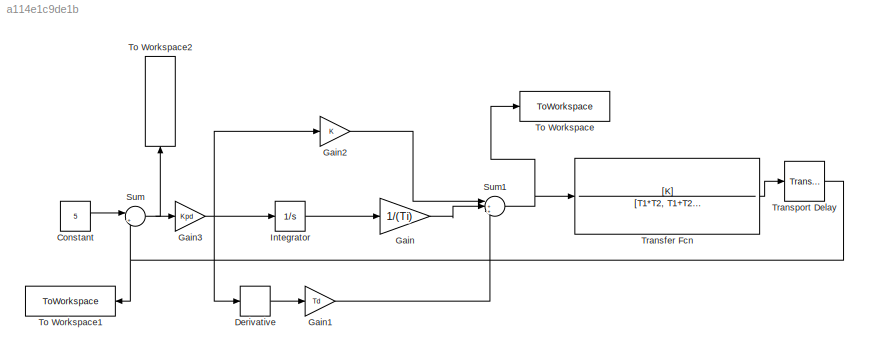
MODEL slx_a114e1c9de1b
KIND model
CONFIG AbsTol = auto
CONFIG EnableMultiTasking = off
CONFIG FixedStep = auto
CONFIG MaxStep = auto
CONFIG MinStep = auto
CONFIG RelTol = 1e-3
CONFIG SampleTimeConstraint = Unconstrained
CONFIG SolverName = VariableStepAuto
CONFIG StartTime = 0.0
CONFIG StopTime = 10.0
BLOCK [Constant] Constant
  Value = 5
BLOCK [Derivative] Derivative
BLOCK [Gain] Gain
  Gain = 1/(Ti)
BLOCK [Gain] Gain1
  Gain = Td
BLOCK [Gain] Gain2
BLOCK [Gain] Gain3
  Gain = Kpd
BLOCK [Integrator] Integrator
BLOCK [Sum] Sum
  Inputs = |+-
BLOCK [Sum] Sum1
  Inputs = |+++
BLOCK [ToWorkspace] To Workspace
  FixptAsFi = on
  MaxDataPoints = inf
  SampleTime = -1
  SaveFormat = Structure With Time
  VariableName = ud
BLOCK [ToWorkspace] To Workspace1
  FixptAsFi = on
  MaxDataPoints = inf
  NameLocation = top
  SampleTime = -1
  SaveFormat = Structure With Time
  VariableName = yd
BLOCK [ToWorkspace] To Workspace2
  FixptAsFi = on
  MaxDataPoints = inf
  NameLocation = right
  SampleTime = -1
  SaveFormat = Structure With Time
  VariableName = ed
BLOCK [TransferFcn] Transfer Fcn
  Denominator = [T1*T2, T1+T2, 1]
  Numerator = [K]
BLOCK [TransportDelay] Transport Delay
  DelayTime = 5
LINE Constant:1 -> Sum:1
LINE Derivative:1 -> Gain1:1
LINE Gain1:1 -> Sum1:3
LINE Gain2:1 -> Sum1:1
NET Gain3:1 -> Derivative:1, Gain2:1, Integrator:1
LINE Gain:1 -> Sum1:2
LINE Integrator:1 -> Gain:1
NET Sum1:1 -> To Workspace:1, Transfer Fcn:1
NET Sum:1 -> Gain3:1, To Workspace2:1
LINE Transfer Fcn:1 -> Transport Delay:1
NET Transport Delay:1 -> Sum:2, To Workspace1:1
note: NET lines group one-source signal fan-out (src -> all destinations, sorted); 1:1 wires keep LINE
